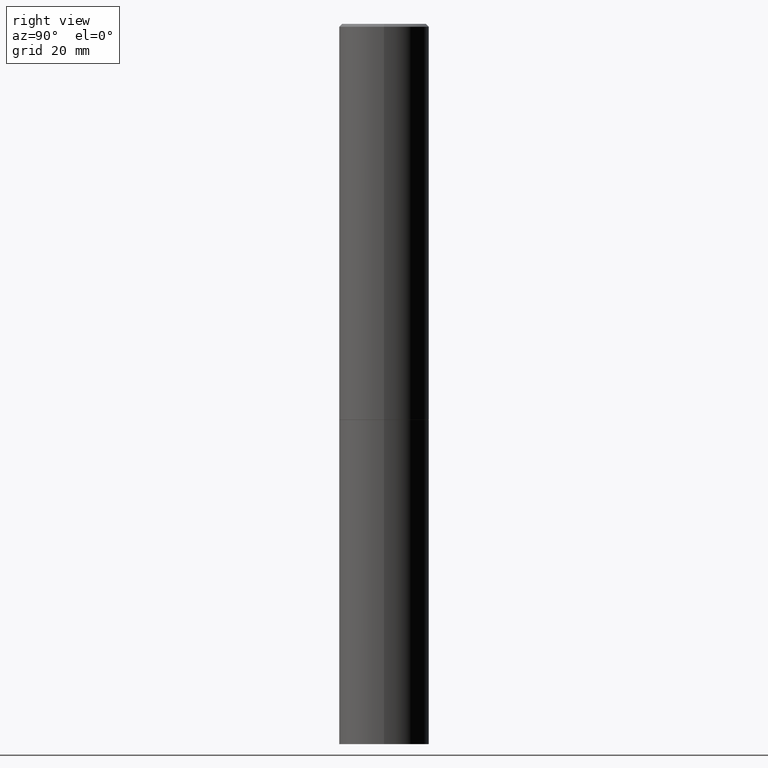
[diagram: clean part render]
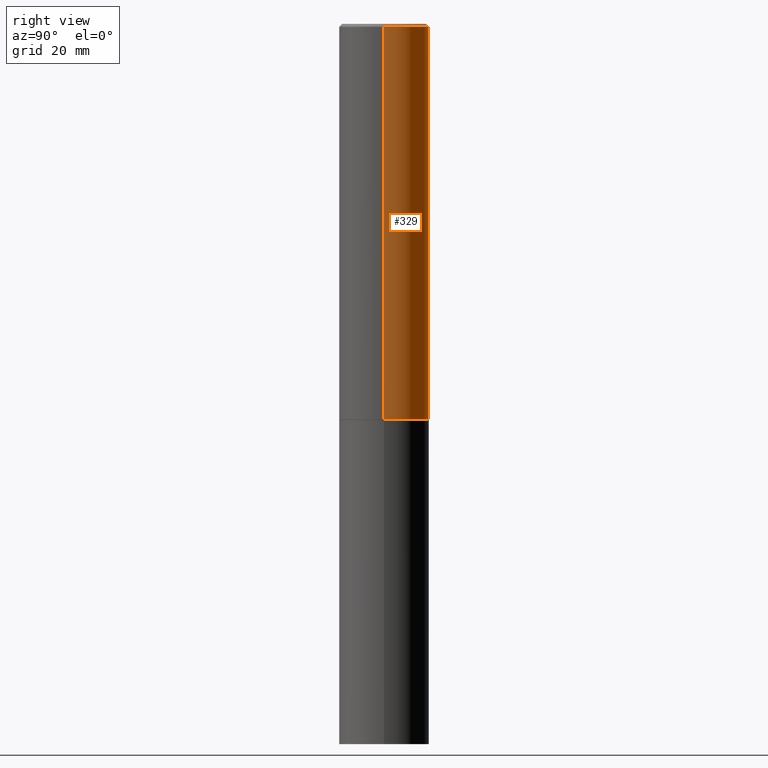
[diagram: same view with one face highlighted and labeled with its STEP entity id]
A machine part, right view. The second image highlights one B-rep face of the part: STEP entity #329.
In plain terms, the highlighted cylindrical surface (partial cylindrical patch) has radius 7.9375 mm, axis along (-0, 0, 1).
Its self-contained STEP definition (entity closure, byte-faithful):
#19 = CARTESIAN_POINT ( 'NONE',  ( 4.890937612370287172E-31, -6.982962677686310098E-17, -0.02000000000000005593 ) ) ;
#38 = DIRECTION ( 'NONE',  ( -2.445468806185136877E-29, 3.491481338843145188E-15, 1.000000000000000000 ) ) ;
#39 = LINE ( 'NONE', #278, #388 ) ;
#52 = EDGE_CURVE ( 'NONE', #330, #356, #39, .T. ) ;
#56 = CARTESIAN_POINT ( 'NONE',  ( 0.3124999999999996669, -2.213735251080464545E-15, -0.02000000000000005593 ) ) ;
#70 = CARTESIAN_POINT ( 'NONE',  ( 0.000000000000000000, 0.000000000000000000, 0.000000000000000000 ) ) ;
#71 = CARTESIAN_POINT ( 'NONE',  ( 0.3125000000000000000, -1.178025803725676678E-14, -2.749000000000000110 ) ) ;
#89 = EDGE_CURVE ( 'NONE', #328, #330, #140, .T. ) ;
#92 = CARTESIAN_POINT ( 'NONE',  ( -0.3124999999999996669, 2.112346210000092682E-15, -0.02000000000000005593 ) ) ;
#102 = EDGE_CURVE ( 'NONE', #328, #190, #258, .T. ) ;
#105 = VECTOR ( 'NONE', #239, 39.37007874015748143 ) ;
#106 = CYLINDRICAL_SURFACE ( 'NONE', #137, 0.3124999999999998890 ) ;
#120 = CIRCLE ( 'NONE', #270, 0.3124999999999996669 ) ;
#125 = ORIENTED_EDGE ( 'NONE', *, *, #89, .T. ) ;
#132 = CARTESIAN_POINT ( 'NONE',  ( 0.3124999999999998890, -2.182175836776957558E-15, 1.523805242436229235E-29 ) ) ;
#135 = FACE_OUTER_BOUND ( 'NONE', #296, .T. ) ;
#137 = AXIS2_PLACEMENT_3D ( 'NONE', #70, #305, #310 ) ;
#140 = CIRCLE ( 'NONE', #215, 0.3125000000000000000 ) ;
#143 = DIRECTION ( 'NONE',  ( -2.445468806185136597E-29, 3.491481338843145583E-15, 1.000000000000000000 ) ) ;
#148 = ORIENTED_EDGE ( 'NONE', *, *, #102, .F. ) ;
#188 = DIRECTION ( 'NONE',  ( 1.000000000000000000, -6.982962677686269077E-15, 0.000000000000000000 ) ) ;
#190 = VERTEX_POINT ( 'NONE', #56 ) ;
#215 = AXIS2_PLACEMENT_3D ( 'NONE', #386, #223, #188 ) ;
#223 = DIRECTION ( 'NONE',  ( -2.445468806185136597E-29, 3.491481338843145583E-15, 1.000000000000000000 ) ) ;
#239 = DIRECTION ( 'NONE',  ( -2.445468806185136877E-29, 3.491481338843145188E-15, 1.000000000000000000 ) ) ;
#249 = CARTESIAN_POINT ( 'NONE',  ( -0.3125000000000000000, -2.613509864378020417E-15, -2.749000000000000110 ) ) ;
#258 = LINE ( 'NONE', #132, #105 ) ;
#270 = AXIS2_PLACEMENT_3D ( 'NONE', #19, #143, #342 ) ;
#278 = CARTESIAN_POINT ( 'NONE',  ( -0.3124999999999998890, 2.220446049250312292E-15, -1.537167215704657391E-29 ) ) ;
#284 = ORIENTED_EDGE ( 'NONE', *, *, #52, .T. ) ;
#296 = EDGE_LOOP ( 'NONE', ( #125, #284, #300, #148 ) ) ;
#300 = ORIENTED_EDGE ( 'NONE', *, *, #385, .F. ) ;
#305 = DIRECTION ( 'NONE',  ( -2.445468806185136597E-29, 3.491481338843145583E-15, 1.000000000000000000 ) ) ;
#310 = DIRECTION ( 'NONE',  ( 1.000000000000000000, -6.982962677686266711E-15, 4.876176775795935232E-29 ) ) ;
#328 = VERTEX_POINT ( 'NONE', #71 ) ;
#329 = ADVANCED_FACE ( 'NONE', ( #135 ), #106, .T. ) ;
#330 = VERTEX_POINT ( 'NONE', #249 ) ;
#342 = DIRECTION ( 'NONE',  ( 1.000000000000000000, -6.982962677686266711E-15, 0.000000000000000000 ) ) ;
#356 = VERTEX_POINT ( 'NONE', #92 ) ;
#385 = EDGE_CURVE ( 'NONE', #190, #356, #120, .T. ) ;
#386 = CARTESIAN_POINT ( 'NONE',  ( 6.722593748202941159E-29, -9.598082200479808430E-15, -2.749000000000000110 ) ) ;
#388 = VECTOR ( 'NONE', #38, 39.37007874015748143 ) ;